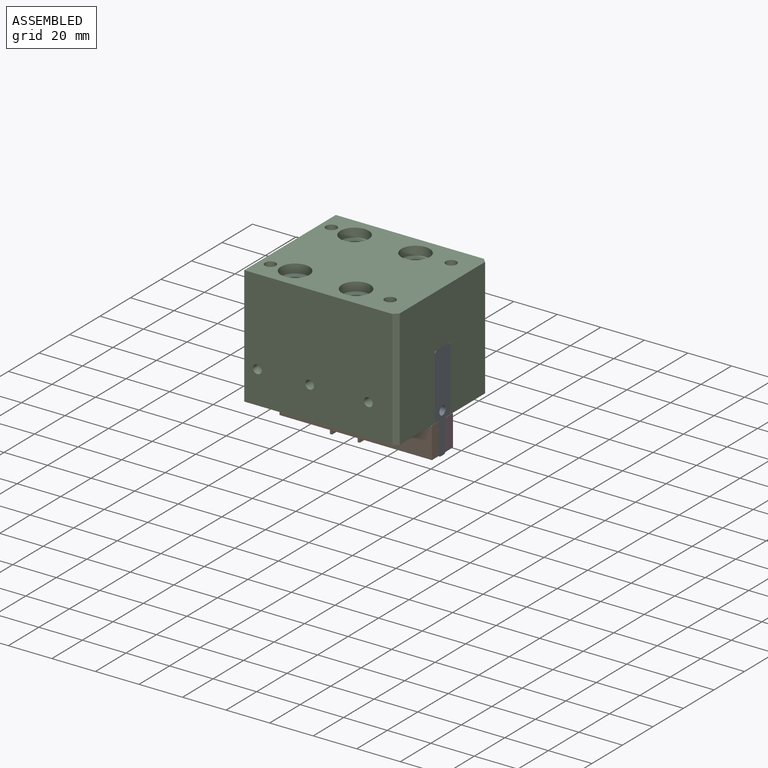
[diagram: assembled view]
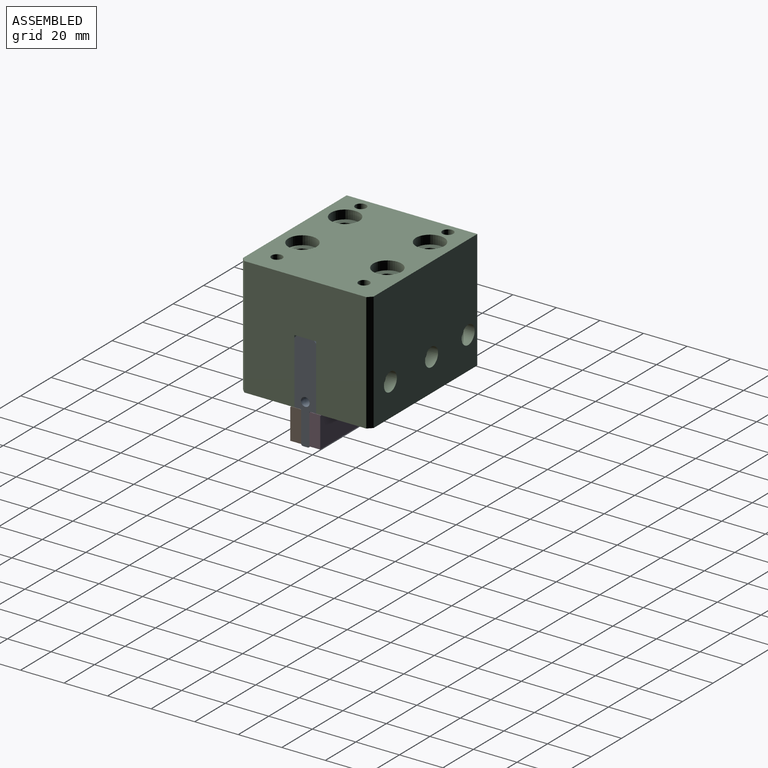
[diagram: assembled view, second angle]
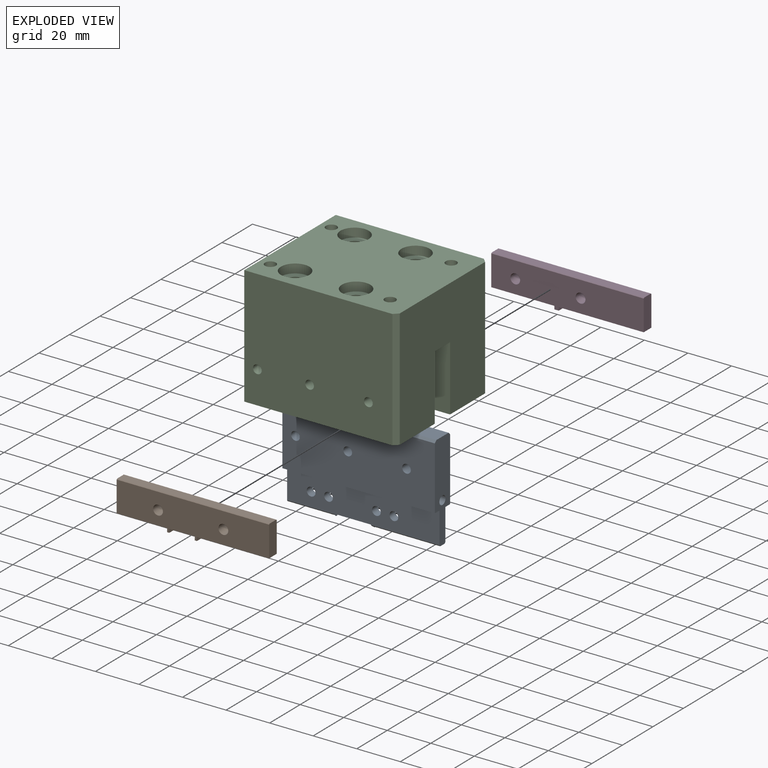
[diagram: exploded view]
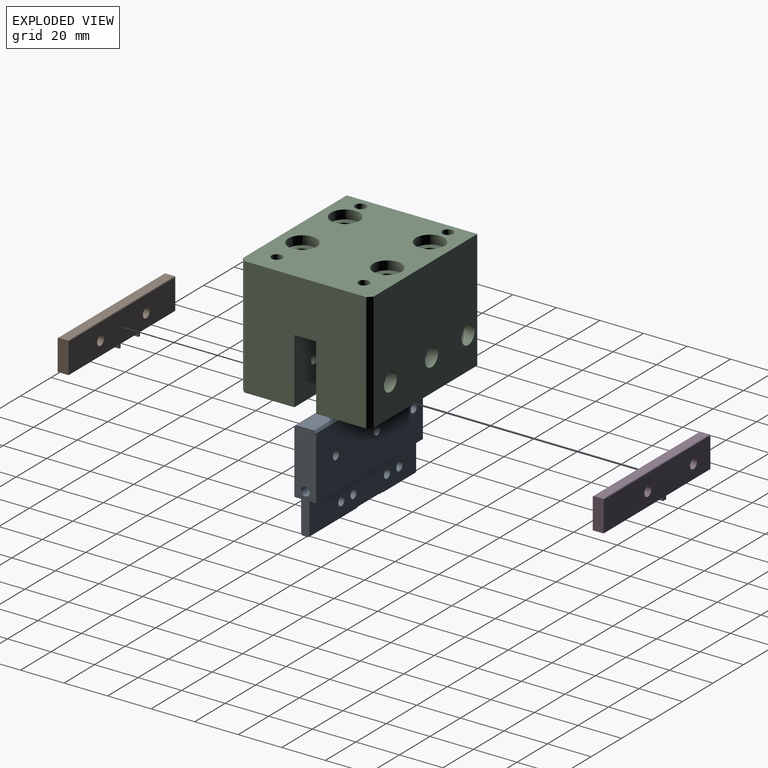
[diagram: exploded view, second angle]
ASSEMBLY  parts=4 mates=3
PART A: 41 faces, bbox 70x10x45.9 mm
  f0: plane 0.7x0.6mm, normal (0,0,-1), area 0.4mm2, adj f6,f7,f8,f9
  f1: plane 0.7x0.6mm, normal (0,0,-1), area 0.4mm2, adj f3,f4,f5,f13
  f2: plane 4x4mm, normal (1,0,0), area 12.6mm2, adj f18
  f3: plane 0.8x0.6mm, normal (0,1,0), area 0.5mm2, adj f1,f4,f13,f20
  f4: plane 0.8x0.7mm, normal (1,0,0), area 0.6mm2, adj f1,f3,f5,f20
  f5: plane 0.8x0.6mm, normal (0,-1,0), area 0.5mm2, adj f1,f4,f13,f20
  f6: plane 0.8x0.6mm, normal (0,-1,0), area 0.5mm2, adj f0,f7,f9,f25
  f7: plane 0.8x0.7mm, normal (-1,0,0), area 0.6mm2, adj f0,f6,f8,f25
  f8: plane 0.8x0.6mm, normal (0,1,0), area 0.5mm2, adj f0,f7,f9,f25
  f9: plane 3.8x1.35mm, normal (1,0,0), area 2.4mm2, adj f0,f6,f8,f10,f23,f24,f25,f26
  f10: cylinder r=0.2mm len=3.8mm, axis (0,1,0), area 1.2mm2, adj f9,f11,f23,f27
  f11: plane 16.65x3.8mm, normal (0,0,-1), area 63.3mm2, adj f10,f12,f23,f27
  f12: cylinder r=0.2mm len=3.8mm, axis (0,-1,0), area 1.2mm2, adj f11,f13,f23,f27
  f13: plane 3.8x1.35mm, normal (-1,0,0), area 2.4mm2, adj f1,f3,f5,f12,f19,f20,f21,f23
  f14: cylinder r=2mm len=4mm, axis (0,-1,0), area 47.8mm2, adj f23,f27
  f15: cylinder r=2mm len=4mm, axis (0,-1,0), area 47.8mm2, adj f23,f27
  f16: cylinder r=2mm len=4mm, axis (0,-1,0), area 47.8mm2, adj f23,f27
  f17: cylinder r=2mm len=4mm, axis (0,-1,0), area 47.8mm2, adj f23,f27
  f18: cylinder r=2mm len=6mm, axis (1,0,0), area 75.4mm2, adj f2,f29
  f19: plane 31.48x0.5mm, normal (0,0.71,-0.71), area 22.3mm2, adj f13,f20,f27,f29
  f20: plane 31.48x2.8mm, normal (0,0,-1), area 87.7mm2, adj f3,f4,f5,f13,f19,f21,f29
  f21: plane 31.48x0.5mm, normal (0,-0.71,-0.71), area 22.3mm2, adj f13,f20,f23,f29
  f22: cylinder r=0.2mm len=70mm, axis (-1,0,0), area 22mm2, adj f23,f29,f30,f32
  f23: plane 70x14.35mm, normal (0,-1,0), area 950mm2, adj f9,f10,f11,f12,f13,f14,f15,f16
  f24: plane 21.48x0.5mm, normal (0,-0.71,-0.71), area 15.2mm2, adj f9,f23,f25,f30
  f25: plane 21.48x2.8mm, normal (0,0,-1), area 59.7mm2, adj f6,f7,f8,f9,f24,f26,f30
  f26: plane 21.48x0.5mm, normal (0,0.71,-0.71), area 15.2mm2, adj f9,f25,f27,f30
  f27: plane 70x14.35mm, normal (0,1,0), area 950mm2, adj f9,f10,f11,f12,f13,f14,f15,f16
  f28: cylinder r=0.2mm len=70mm, axis (1,0,0), area 22mm2, adj f27,f29,f30,f31
  f29: plane 45.05x10mm, normal (1,0,0), area 343.4mm2, adj f18,f19,f20,f21,f22,f23,f27,f28
  f30: plane 45.05x10mm, normal (-1,0,0), area 356mm2, adj f22,f23,f24,f25,f26,f27,f28,f31
  f31: plane 70x2.9mm, normal (0,0,-1), area 203mm2, adj f28,f29,f30,f35
  f32: plane 70x2.9mm, normal (0,0,-1), area 203mm2, adj f22,f29,f30,f33
  f33: plane 70x29mm, normal (0,-1,0), area 1992.3mm2, adj f29,f30,f32,f36,f37,f38,f40
  f34: plane 70x8mm, normal (0,0,1), area 560mm2, adj f29,f30,f39,f40
  f35: plane 70x29mm, normal (0,1,0), area 1992.3mm2, adj f29,f30,f31,f36,f37,f38,f39
  f36: cylinder r=2mm len=10mm, axis (0,1,0), area 125.7mm2, adj f33,f35
  f37: cylinder r=2mm len=10mm, axis (0,1,0), area 125.7mm2, adj f33,f35
  f38: cylinder r=2mm len=10mm, axis (0,1,0), area 125.7mm2, adj f33,f35
  f39: plane 70x1mm, normal (0,0.71,0.71), area 99mm2, adj f29,f30,f34,f35
  f40: plane 70x1mm, normal (0,-0.71,0.71), area 99mm2, adj f29,f30,f33,f34
PART B: 18 faces, bbox 70x5x16 mm
  f0: plane 5x1mm, normal (0,0,-1), area 5mm2, adj f1,f3,f12,f14
  f1: plane 70x15.65mm, normal (0,-1,0), area 951.5mm2, adj f0,f2,f4,f6,f7,f8,f9,f10
  f2: plane 14.3x5mm, normal (1,0,0), area 71.4mm2, adj f1,f3,f5,f11,f16,f17
  f3: plane 70x15.65mm, normal (0,1,0), area 951.5mm2, adj f0,f2,f4,f6,f7,f8,f9,f10
  f4: plane 5x1mm, normal (0,0,-1), area 5mm2, adj f1,f3,f10,f13
  f5: plane 70x4.4mm, normal (0,0,1), area 308mm2, adj f2,f6,f16,f17
  f6: plane 14.3x5mm, normal (-1,0,0), area 71.4mm2, adj f1,f3,f5,f9,f16,f17
  f7: cylinder r=2.25mm len=5mm, axis (0,-1,0), area 70.7mm2, adj f1,f3
  f8: cylinder r=2.25mm len=5mm, axis (0,-1,0), area 70.7mm2, adj f1,f3
  f9: plane 33.15x5mm, normal (0,0,-1), area 165.8mm2, adj f1,f3,f6,f10
  f10: plane 5x1.65mm, normal (-1,0,0), area 8.2mm2, adj f1,f3,f4,f9
  f11: plane 23.15x5mm, normal (0,0,-1), area 115.8mm2, adj f1,f2,f3,f12
  f12: plane 5x1.65mm, normal (1,0,0), area 8.2mm2, adj f0,f1,f3,f11
  f13: plane 5x1.65mm, normal (1,0,0), area 8.2mm2, adj f1,f3,f4,f15
  f14: plane 5x1.65mm, normal (-1,0,0), area 8.2mm2, adj f0,f1,f3,f15
  f15: plane 11.7x5mm, normal (0,0,-1), area 58.5mm2, adj f1,f3,f13,f14
  f16: plane 70x0.3mm, normal (0,-0.71,0.71), area 29.7mm2, adj f1,f2,f5,f6
  f17: plane 70x0.3mm, normal (0,0.71,0.71), area 29.7mm2, adj f2,f3,f5,f6
PART C: 44 faces, bbox 70x60x54.6 mm
  f0: plane 70x25mm, normal (0,0,-1), area 1670.7mm2, adj f4,f10,f11,f12,f13,f34,f42
  f1: cylinder r=2mm len=20mm, axis (0,1,0), area 251.3mm2, adj f39,f41
  f2: cylinder r=2mm len=20mm, axis (0,1,0), area 251.3mm2, adj f37,f41
  f3: cylinder r=2mm len=20mm, axis (0,1,0), area 251.3mm2, adj f35,f41
  f4: plane 56x54.55mm, normal (1,0,0), area 2754.5mm2, adj f0,f14,f16,f33,f34,f41,f42,f43
  f5: cylinder r=2mm len=25mm, axis (0,1,0), area 314.1mm2, adj f13,f42
  f6: cylinder r=2mm len=25mm, axis (0,1,0), area 314.1mm2, adj f13,f42
  f7: cylinder r=2mm len=25mm, axis (0,1,0), area 314.1mm2, adj f13,f42
  f8: cylinder r=3.5mm len=50.45mm, axis (0,0,-1), area 1109.5mm2, adj f16,f23
  f9: cylinder r=3.5mm len=50.45mm, axis (0,0,-1), area 1109.5mm2, adj f16,f21
  f10: cylinder r=3.5mm len=50.45mm, axis (0,0,-1), area 1109.5mm2, adj f0,f19
  f11: cylinder r=3.5mm len=50.45mm, axis (0,0,-1), area 1109.5mm2, adj f0,f17
  f12: plane 60x54.55mm, normal (-1,0,0), area 2972.7mm2, adj f0,f13,f14,f15,f16,f41,f42,f43
  f13: plane 68x54.55mm, normal (0,-1,0), area 3671.7mm2, adj f0,f5,f6,f7,f12,f14,f34
  f14: plane 70x60mm, normal (0,0,1), area 3586.5mm2, adj f4,f12,f13,f15,f18,f20,f22,f24
  f15: plane 68x54.55mm, normal (0,1,0), area 3539.2mm2, adj f12,f14,f16,f33,f36,f38,f40
  f16: plane 70x25mm, normal (0,0,-1), area 1670.7mm2, adj f4,f8,f9,f12,f15,f33,f41
  f17: plane 13x13mm, normal (0,0,1), area 94.2mm2, adj f11,f18
  f18: cylinder r=6.5mm len=13mm, axis (0,0,1), area 167.4mm2, adj f14,f17
  f19: plane 13x13mm, normal (0,0,1), area 94.2mm2, adj f10,f20
  f20: cylinder r=6.5mm len=13mm, axis (0,0,1), area 167.4mm2, adj f14,f19
  f21: plane 13x13mm, normal (0,0,1), area 94.2mm2, adj f9,f22
  f22: cylinder r=6.5mm len=13mm, axis (0,0,1), area 167.4mm2, adj f14,f21
  f23: plane 13x13mm, normal (0,0,1), area 94.2mm2, adj f8,f24
  f24: cylinder r=6.5mm len=13mm, axis (0,0,1), area 167.4mm2, adj f14,f23
  f25: cylinder r=2.5mm len=12mm, axis (0,0,1), area 188.5mm2, adj f14,f26
  f26: plane 5x5mm, normal (0,0,1), area 19.6mm2, adj f25
  f27: cylinder r=2.5mm len=12mm, axis (0,0,1), area 188.5mm2, adj f14,f28
  f28: plane 5x5mm, normal (0,0,1), area 19.6mm2, adj f27
  f29: cylinder r=2.5mm len=12mm, axis (0,0,1), area 188.5mm2, adj f14,f30
  f30: plane 5x5mm, normal (0,0,1), area 19.6mm2, adj f29
  f31: cylinder r=2.5mm len=12mm, axis (0,0,1), area 188.5mm2, adj f14,f32
  f32: plane 5x5mm, normal (0,0,1), area 19.6mm2, adj f31
  f33: plane 54.55x2mm, normal (0.71,0.71,0), area 154.3mm2, adj f4,f14,f15,f16
  f34: plane 54.55x2mm, normal (0.71,-0.71,0), area 154.3mm2, adj f0,f4,f13,f14
  f35: plane 8.5x8.5mm, normal (0,1,0), area 44.2mm2, adj f3,f36
  f36: cylinder r=4.25mm len=8.5mm, axis (0,1,0), area 133.5mm2, adj f15,f35
  f37: plane 8.5x8.5mm, normal (0,1,0), area 44.2mm2, adj f2,f38
  f38: cylinder r=4.25mm len=8.5mm, axis (0,1,0), area 133.5mm2, adj f15,f37
  f39: plane 8.5x8.5mm, normal (0,1,0), area 44.2mm2, adj f1,f40
  f40: cylinder r=4.25mm len=8.5mm, axis (0,1,0), area 133.5mm2, adj f15,f39
  f41: plane 70x30mm, normal (0,-1,0), area 2062.3mm2, adj f1,f2,f3,f4,f12,f16,f43
  f42: plane 70x30mm, normal (0,1,0), area 2062.3mm2, adj f0,f4,f5,f6,f7,f12,f43
  f43: plane 70x10.01mm, normal (0,0,-1), area 700.7mm2, adj f4,f12,f41,f42
PART D: 14 faces, bbox 70x5x15.8 mm
  f0: plane 14.3x5mm, normal (1,0,0), area 71.4mm2, adj f1,f2,f4,f10,f12,f13
  f1: plane 70x15.45mm, normal (0,1,0), area 951.1mm2, adj f0,f3,f5,f6,f7,f8,f9,f10
  f2: plane 70x15.45mm, normal (0,-1,0), area 951.1mm2, adj f0,f3,f5,f6,f7,f8,f9,f10
  f3: plane 5x2mm, normal (0,0,-1), area 10mm2, adj f1,f2,f9,f11
  f4: plane 70x4.4mm, normal (0,0,1), area 308mm2, adj f0,f5,f12,f13
  f5: plane 14.3x5mm, normal (-1,0,0), area 71.4mm2, adj f1,f2,f4,f8,f12,f13
  f6: cylinder r=2.25mm len=5mm, axis (0,-1,0), area 70.7mm2, adj f1,f2
  f7: cylinder r=2.25mm len=5mm, axis (0,-1,0), area 70.7mm2, adj f1,f2
  f8: plane 29x5mm, normal (0,0,-1), area 145mm2, adj f1,f2,f5,f9
  f9: plane 5x1.45mm, normal (-1,0,0), area 7.2mm2, adj f1,f2,f3,f8
  f10: plane 39x5mm, normal (0,0,-1), area 195mm2, adj f0,f1,f2,f11
  f11: plane 5x1.45mm, normal (1,0,0), area 7.2mm2, adj f1,f2,f3,f10
  f12: plane 70x0.3mm, normal (0,-0.71,0.71), area 29.7mm2, adj f0,f2,f4,f5
  f13: plane 70x0.3mm, normal (0,0.71,0.71), area 29.7mm2, adj f0,f1,f4,f5
PLACE A t=(-29.5,-47.39,11.73)mm
PLACE B rot(axis=(0,0,1),180deg) t=(-29.5,-19.29,-15.69)mm
PLACE C t=(-29.5,-47.4,11.73)mm
PLACE D t=(-29.5,-15.49,-15.59)mm
MATE fastened D.f7 <-> A.f17  axis (0,-1,0) through (-53.5,-15.49,-15.62)mm
MATE fastened C.f3 <-> A.f36  axis (0,1,0) through (-7.5,-12.39,7.38)mm
MATE revolute B.f8 <-> A.f16  axis (0,1,0) through (-45.5,-19.29,-15.62)mm
